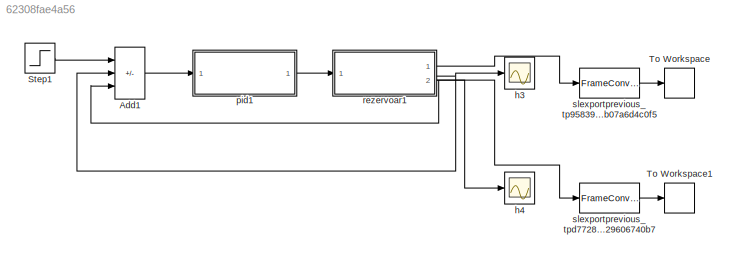
MODEL slx_62308fae4a56
KIND model
BLOCK [Sum] Add1
  IconShape = rectangular
  Inputs = +--
  Ports = [3, 1]
BLOCK [Step] Step1
  After = 15
  Before = 1
  SampleTime = 0
  Time = 0
BLOCK [ToWorkspace] To Workspace
  FixptAsFi = on
  MaxDataPoints = inf
  Ports = [1]
  SampleTime = -1
  VariableName = p1
BLOCK [ToWorkspace] To Workspace1
  FixptAsFi = on
  MaxDataPoints = inf
  Ports = [1]
  SampleTime = -1
  VariableName = p2
BLOCK [Scope] h3
  DataFormat = Array
  Decimation = 1
  Floating = off
  Grid = on
  LimitDataPoints = on
  MaxDataPoints = 5000
  NumInputPorts = 1
  Ports = [1]
  SampleInput = off
  SampleTime = -1
  SaveName = ScopeData2
  SaveToWorkspace = off
  ShowLegends = off
  TickLabels = OneTimeTick
  TimeRange = auto
  YMax = 10
  YMin = -10
  ZoomMode = on
BLOCK [Scope] h4
  DataFormat = Array
  Decimation = 1
  Floating = off
  Grid = on
  LimitDataPoints = on
  MaxDataPoints = 5000
  NumInputPorts = 1
  Ports = [1]
  SampleInput = off
  SampleTime = -1
  SaveName = ScopeData3
  SaveToWorkspace = off
  ShowLegends = off
  TickLabels = OneTimeTick
  TimeRange = auto
  YMax = 10
  YMin = -10
  ZoomMode = on
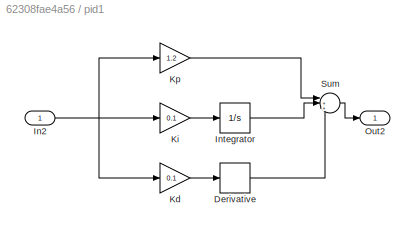
BLOCK [SubSystem] pid1
  FunctionWithSeparateData = off
  MaskHideContents = off
  MinAlgLoopOccurrences = off
  Opaque = off
  Ports = [1, 1]
  PropExecContextOutsideSubsystem = off
  RTWSystemCode = Auto
  RequestExecContextInheritance = off
BLOCK [Derivative] pid1/Derivative
BLOCK [Inport] pid1/In2
BLOCK [Integrator] pid1/Integrator
  Ports = [1, 1]
BLOCK [Gain] pid1/Kd
  Gain = 0.1
BLOCK [Gain] pid1/Ki
  Gain = 0.1
BLOCK [Gain] pid1/Kp
  Gain = 1.2
BLOCK [Outport] pid1/Out2
BLOCK [Sum] pid1/Sum
  Inputs = |+++
  Ports = [3, 1]
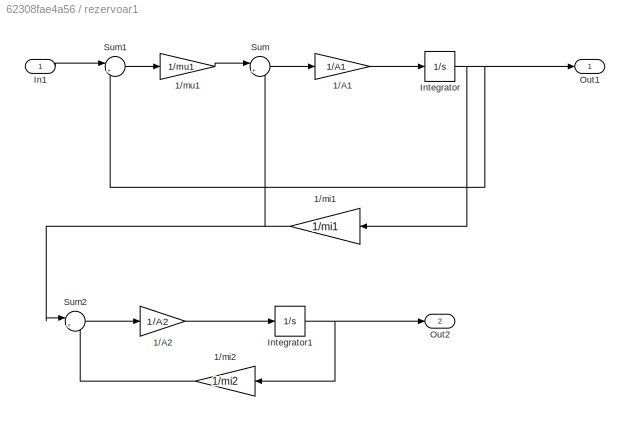
BLOCK [SubSystem] rezervoar1
  FunctionWithSeparateData = off
  MaskHideContents = off
  MinAlgLoopOccurrences = off
  Opaque = off
  Ports = [1, 2]
  PropExecContextOutsideSubsystem = off
  RTWSystemCode = Auto
  RequestExecContextInheritance = off
BLOCK [Gain] rezervoar1/1//A1
  Gain = 1/A1
BLOCK [Gain] rezervoar1/1//A2
  Gain = 1/A2
BLOCK [Gain] rezervoar1/1//mi1
  Gain = 1/mi1
BLOCK [Gain] rezervoar1/1//mi2
  Gain = 1/mi2
BLOCK [Gain] rezervoar1/1//mu1
  Gain = 1/mu1
BLOCK [Inport] rezervoar1/In1
BLOCK [Integrator] rezervoar1/Integrator
  InitialCondition = 1
  Ports = [1, 1]
BLOCK [Integrator] rezervoar1/Integrator1
  InitialCondition = 1
  Ports = [1, 1]
BLOCK [Outport] rezervoar1/Out1
BLOCK [Outport] rezervoar1/Out2
  Port = 2
BLOCK [Sum] rezervoar1/Sum
  Inputs = |+-
  Ports = [2, 1]
BLOCK [Sum] rezervoar1/Sum1
  Inputs = |+-
  Ports = [2, 1]
BLOCK [Sum] rezervoar1/Sum2
  Inputs = |+-
  Ports = [2, 1]
BLOCK [FrameConversion] slexportprevious_tp95839e7f_5ca1_4183_9947_8b07a6d4c0f5
  OutFrame = Sample-based
  Ports = [1, 1]
BLOCK [FrameConversion] slexportprevious_tpd7728486_3d1e_4ac9_8066_2529606740b7
  OutFrame = Sample-based
  Ports = [1, 1]
LINE Add1:1 -> pid1:1
LINE Step1:1 -> Add1:1
LINE pid1/Derivative:1 -> pid1/Sum:3
NET pid1/In2:1 -> pid1/Kd:1, pid1/Ki:1, pid1/Kp:1
LINE pid1/Integrator:1 -> pid1/Sum:2
LINE pid1/Kd:1 -> pid1/Derivative:1
LINE pid1/Ki:1 -> pid1/Integrator:1
LINE pid1/Kp:1 -> pid1/Sum:1
LINE pid1/Sum:1 -> pid1/Out2:1
LINE pid1:1 -> rezervoar1:1
LINE rezervoar1/1//A1:1 -> rezervoar1/Integrator:1
LINE rezervoar1/1//A2:1 -> rezervoar1/Integrator1:1
NET rezervoar1/1//mi1:1 -> rezervoar1/Sum2:1, rezervoar1/Sum:2
LINE rezervoar1/1//mi2:1 -> rezervoar1/Sum2:2
LINE rezervoar1/1//mu1:1 -> rezervoar1/Sum:1
LINE rezervoar1/In1:1 -> rezervoar1/Sum1:1
NET rezervoar1/Integrator1:1 -> rezervoar1/1//mi2:1, rezervoar1/Out2:1
NET rezervoar1/Integrator:1 -> rezervoar1/1//mi1:1, rezervoar1/Out1:1, rezervoar1/Sum1:2
LINE rezervoar1/Sum1:1 -> rezervoar1/1//mu1:1
LINE rezervoar1/Sum2:1 -> rezervoar1/1//A2:1
LINE rezervoar1/Sum:1 -> rezervoar1/1//A1:1
NET rezervoar1:1 -> Add1:2, h3:1, slexportprevious_tp95839e7f_5ca1_4183_9947_8b07a6d4c0f5:1
NET rezervoar1:2 -> Add1:3, h4:1, slexportprevious_tpd7728486_3d1e_4ac9_8066_2529606740b7:1
LINE slexportprevious_tp95839e7f_5ca1_4183_9947_8b07a6d4c0f5:1 -> To Workspace:1
LINE slexportprevious_tpd7728486_3d1e_4ac9_8066_2529606740b7:1 -> To Workspace1:1
note: NET lines group one-source signal fan-out (src -> all destinations, sorted); 1:1 wires keep LINE
